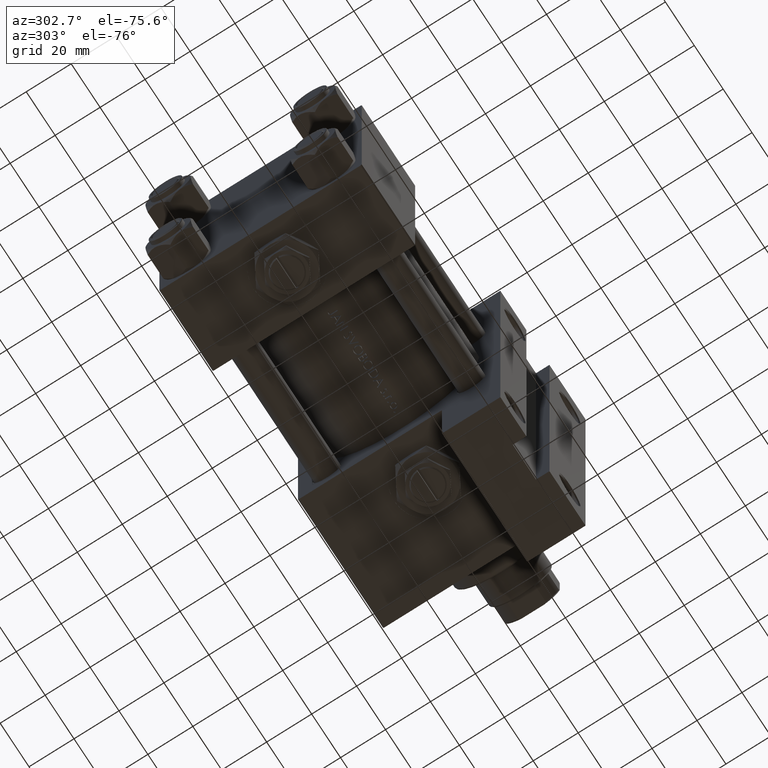
[diagram: clean part render]
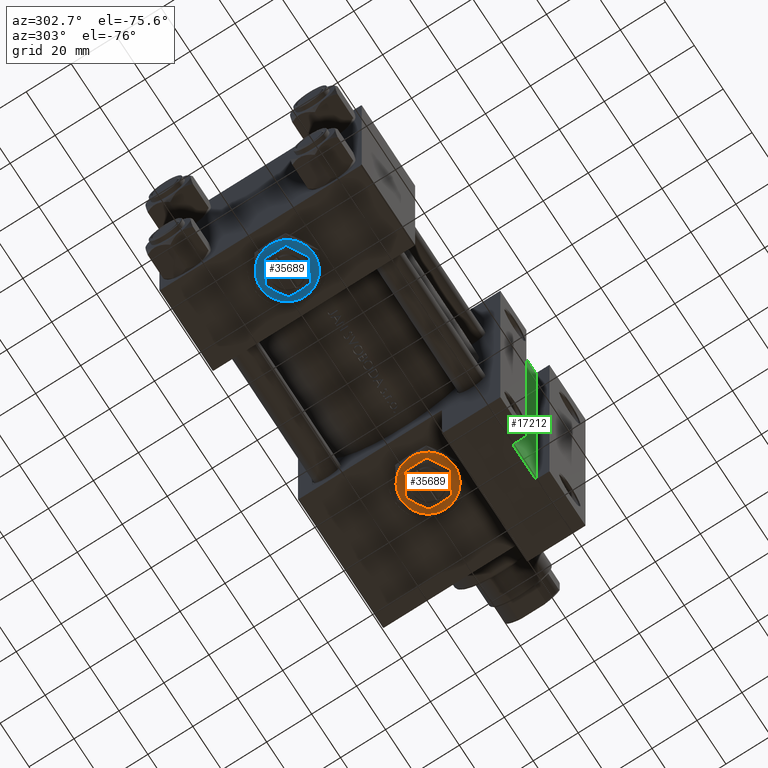
[diagram: same view with three faces highlighted in distinct colors, each labeled with its STEP entity id]
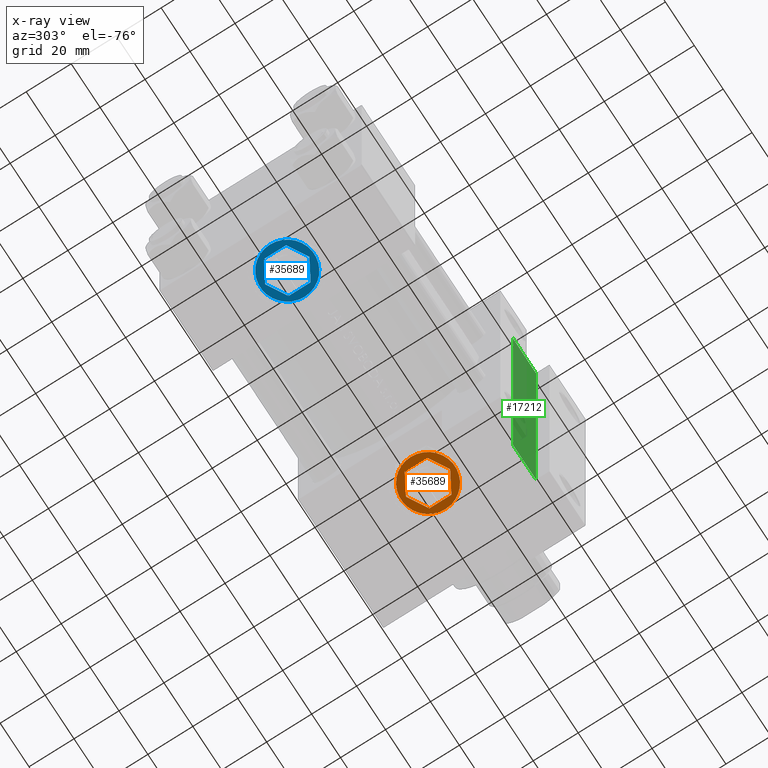
[diagram: x-ray of the same camera — body ghosted, the three highlighted faces saturated]
A machine part, auxiliary view with three faces highlighted in distinct colors.
The next image is the same camera in x-ray (body ghosted, the three faces saturated) — at least one of them is partly hidden behind the body in this view.
Their STEP definitions:

[orange] entity #35689 — the highlighted planar face has unit normal (0, 0, -1).
#386 = AXIS2_PLACEMENT_3D ( 'NONE', #17984, #6428, #19156 ) ;
#557 = VERTEX_POINT ( 'NONE', #48236 ) ;
#794 = AXIS2_PLACEMENT_3D ( 'NONE', #31246, #46593, #24429 ) ;
#1342 = DIRECTION ( 'NONE',  ( 1.000000000000000000, 0.000000000000000000, 0.000000000000000000 ) ) ;
#1390 = DIRECTION ( 'NONE',  ( 0.000000000000000000, -1.000000000000000000, 0.000000000000000000 ) ) ;
#2011 = ORIENTED_EDGE ( 'NONE', *, *, #36742, .F. ) ;
#2595 = CARTESIAN_POINT ( 'NONE',  ( 6.000000000000000888, 10.39230484541326582, 4.299999999999999822 ) ) ;
#2626 = CIRCLE ( 'NONE', #33955, 12.00000000000000178 ) ;
#2661 = VERTEX_POINT ( 'NONE', #38215 ) ;
#2811 = CIRCLE ( 'NONE', #386, 12.00000000000000178 ) ;
#3235 = EDGE_CURVE ( 'NONE', #35848, #27114, #23175, .T. ) ;
#3412 = VECTOR ( 'NONE', #36596, 1000.000000000000227 ) ;
#3415 = ORIENTED_EDGE ( 'NONE', *, *, #42263, .T. ) ;
#3680 = VECTOR ( 'NONE', #38524, 1000.000000000000114 ) ;
#4024 = CIRCLE ( 'NONE', #16835, 12.00000000000000178 ) ;
#4152 = EDGE_CURVE ( 'NONE', #557, #48402, #25081, .T. ) ;
#4809 = CARTESIAN_POINT ( 'NONE',  ( 8.499999999999996447, 4.907477288111821601, 4.299999999999999822 ) ) ;
#5008 = CARTESIAN_POINT ( 'NONE',  ( 8.500000000000000000, -4.907477288111819824, 4.299999999999999822 ) ) ;
#5399 = LINE ( 'NONE', #35841, #26519 ) ;
#5908 = CIRCLE ( 'NONE', #13945, 12.00000000000000178 ) ;
#6428 = DIRECTION ( 'NONE',  ( 0.000000000000000000, 0.000000000000000000, 1.000000000000000000 ) ) ;
#6717 = DIRECTION ( 'NONE',  ( 1.000000000000000000, 0.000000000000000000, 0.000000000000000000 ) ) ;
#7130 = EDGE_CURVE ( 'NONE', #48402, #2661, #5908, .T. ) ;
#8242 = VERTEX_POINT ( 'NONE', #44599 ) ;
#8527 = VERTEX_POINT ( 'NONE', #4809 ) ;
#8639 = CARTESIAN_POINT ( 'NONE',  ( 0.000000000000000000, 0.000000000000000000, 4.299999999999999822 ) ) ;
#9301 = EDGE_CURVE ( 'NONE', #24192, #557, #2811, .T. ) ;
#9357 = PLANE ( 'NONE',  #794 ) ;
#10319 = VERTEX_POINT ( 'NONE', #5008 ) ;
#11084 = LINE ( 'NONE', #15091, #44974 ) ;
#13051 = ORIENTED_EDGE ( 'NONE', *, *, #38361, .F. ) ;
#13120 = ORIENTED_EDGE ( 'NONE', *, *, #4152, .T. ) ;
#13139 = CARTESIAN_POINT ( 'NONE',  ( 0.000000000000000000, 0.000000000000000000, 4.299999999999999822 ) ) ;
#13382 = EDGE_LOOP ( 'NONE', ( #14989, #49125, #41225, #3415, #21770, #13120 ) ) ;
#13945 = AXIS2_PLACEMENT_3D ( 'NONE', #8639, #27988, #19941 ) ;
#14594 = CARTESIAN_POINT ( 'NONE',  ( -8.500000000000000000, -4.907477288111819824, 4.299999999999999822 ) ) ;
#14989 = ORIENTED_EDGE ( 'NONE', *, *, #7130, .T. ) ;
#15091 = CARTESIAN_POINT ( 'NONE',  ( -2.644623992720612091E-15, -9.814954576223637872, 4.299999999999999822 ) ) ;
#16310 = VERTEX_POINT ( 'NONE', #34478 ) ;
#16546 = CARTESIAN_POINT ( 'NONE',  ( -2.644623992720612091E-15, -9.814954576223637872, 4.299999999999999822 ) ) ;
#16835 = AXIS2_PLACEMENT_3D ( 'NONE', #28060, #43413, #47429 ) ;
#17403 = DIRECTION ( 'NONE',  ( -0.8660254037844387076, 0.4999999999999998890, 0.000000000000000000 ) ) ;
#17964 = LINE ( 'NONE', #40352, #3412 ) ;
#17984 = CARTESIAN_POINT ( 'NONE',  ( 0.000000000000000000, 0.000000000000000000, 4.299999999999999822 ) ) ;
#18228 = EDGE_CURVE ( 'NONE', #21411, #8242, #17964, .T. ) ;
#19156 = DIRECTION ( 'NONE',  ( 1.000000000000000000, 0.000000000000000000, 0.000000000000000000 ) ) ;
#19941 = DIRECTION ( 'NONE',  ( 1.000000000000000000, 0.000000000000000000, 0.000000000000000000 ) ) ;
#20151 = FACE_BOUND ( 'NONE', #32594, .T. ) ;
#21411 = VERTEX_POINT ( 'NONE', #47285 ) ;
#21725 = VECTOR ( 'NONE', #17403, 1000.000000000000114 ) ;
#21770 = ORIENTED_EDGE ( 'NONE', *, *, #9301, .T. ) ;
#22047 = EDGE_CURVE ( 'NONE', #2661, #38489, #2626, .T. ) ;
#23175 = LINE ( 'NONE', #23912, #3680 ) ;
#23912 = CARTESIAN_POINT ( 'NONE',  ( -8.500000000000000000, -4.907477288111819824, 4.299999999999999822 ) ) ;
#24192 = VERTEX_POINT ( 'NONE', #41586 ) ;
#24429 = DIRECTION ( 'NONE',  ( 1.000000000000000000, 0.000000000000000000, -0.000000000000000000 ) ) ;
#24656 = CARTESIAN_POINT ( 'NONE',  ( 8.500000000000000000, -4.907477288111819824, 4.299999999999999822 ) ) ;
#24713 = CARTESIAN_POINT ( 'NONE',  ( 8.499999999999996447, 4.907477288111821601, 4.299999999999999822 ) ) ;
#25081 = CIRCLE ( 'NONE', #40335, 12.00000000000000178 ) ;
#25825 = CARTESIAN_POINT ( 'NONE',  ( 0.000000000000000000, 0.000000000000000000, 4.299999999999999822 ) ) ;
#25911 = AXIS2_PLACEMENT_3D ( 'NONE', #13139, #28484, #1342 ) ;
#26519 = VECTOR ( 'NONE', #1390, 1000.000000000000000 ) ;
#27114 = VERTEX_POINT ( 'NONE', #16546 ) ;
#27988 = DIRECTION ( 'NONE',  ( 0.000000000000000000, 0.000000000000000000, 1.000000000000000000 ) ) ;
#28060 = CARTESIAN_POINT ( 'NONE',  ( 0.000000000000000000, 0.000000000000000000, 4.299999999999999822 ) ) ;
#28437 = LINE ( 'NONE', #24656, #43360 ) ;
#28484 = DIRECTION ( 'NONE',  ( 0.000000000000000000, 0.000000000000000000, 1.000000000000000000 ) ) ;
#31246 = CARTESIAN_POINT ( 'NONE',  ( 0.000000000000000000, 0.000000000000000000, 4.299999999999999822 ) ) ;
#31634 = CARTESIAN_POINT ( 'NONE',  ( 0.000000000000000000, 0.000000000000000000, 4.299999999999999822 ) ) ;
#31994 = CARTESIAN_POINT ( 'NONE',  ( 5.999999999999998224, -10.39230484541326760, 4.299999999999999822 ) ) ;
#32594 = EDGE_LOOP ( 'NONE', ( #46430, #13051, #42019, #33686, #33874, #2011 ) ) ;
#32657 = EDGE_CURVE ( 'NONE', #10319, #8527, #28437, .T. ) ;
#33159 = EDGE_CURVE ( 'NONE', #38489, #16310, #4024, .T. ) ;
#33686 = ORIENTED_EDGE ( 'NONE', *, *, #35939, .F. ) ;
#33874 = ORIENTED_EDGE ( 'NONE', *, *, #3235, .F. ) ;
#33955 = AXIS2_PLACEMENT_3D ( 'NONE', #25825, #41174, #6717 ) ;
#34228 = DIRECTION ( 'NONE',  ( 0.8660254037844388186, 0.4999999999999997224, 0.000000000000000000 ) ) ;
#34478 = CARTESIAN_POINT ( 'NONE',  ( -6.000000000000001776, 10.39230484541326405, 4.299999999999999822 ) ) ;
#35689 = ADVANCED_FACE ( 'NONE', ( #43813, #20151 ), #9357, .T. ) ;
#35841 = CARTESIAN_POINT ( 'NONE',  ( -8.500000000000000000, 4.907477288111818048, 4.299999999999999822 ) ) ;
#35848 = VERTEX_POINT ( 'NONE', #14594 ) ;
#35939 = EDGE_CURVE ( 'NONE', #27114, #10319, #11084, .T. ) ;
#36147 = DIRECTION ( 'NONE',  ( 0.000000000000000000, 0.000000000000000000, 1.000000000000000000 ) ) ;
#36596 = DIRECTION ( 'NONE',  ( -0.8660254037844385966, -0.5000000000000000000, 0.000000000000000000 ) ) ;
#36742 = EDGE_CURVE ( 'NONE', #8242, #35848, #5399, .T. ) ;
#38215 = CARTESIAN_POINT ( 'NONE',  ( 11.99999999999999645, 3.004629197474318063E-15, 4.299999999999999822 ) ) ;
#38361 = EDGE_CURVE ( 'NONE', #8527, #21411, #43347, .T. ) ;
#38489 = VERTEX_POINT ( 'NONE', #2595 ) ;
#38524 = DIRECTION ( 'NONE',  ( 0.8660254037844385966, -0.5000000000000001110, 0.000000000000000000 ) ) ;
#39537 = CIRCLE ( 'NONE', #25911, 12.00000000000000178 ) ;
#40000 = DIRECTION ( 'NONE',  ( -3.534857879381550604E-16, 1.000000000000000000, 0.000000000000000000 ) ) ;
#40335 = AXIS2_PLACEMENT_3D ( 'NONE', #31634, #36147, #43713 ) ;
#40352 = CARTESIAN_POINT ( 'NONE',  ( 0.000000000000000000, 9.814954576223637872, 4.299999999999999822 ) ) ;
#41174 = DIRECTION ( 'NONE',  ( 0.000000000000000000, 0.000000000000000000, 1.000000000000000000 ) ) ;
#41225 = ORIENTED_EDGE ( 'NONE', *, *, #33159, .T. ) ;
#41586 = CARTESIAN_POINT ( 'NONE',  ( -12.00000000000000178, 0.000000000000000000, 4.299999999999999822 ) ) ;
#42019 = ORIENTED_EDGE ( 'NONE', *, *, #32657, .F. ) ;
#42263 = EDGE_CURVE ( 'NONE', #16310, #24192, #39537, .T. ) ;
#43347 = LINE ( 'NONE', #24713, #21725 ) ;
#43360 = VECTOR ( 'NONE', #40000, 1000.000000000000000 ) ;
#43413 = DIRECTION ( 'NONE',  ( 0.000000000000000000, 0.000000000000000000, 1.000000000000000000 ) ) ;
#43713 = DIRECTION ( 'NONE',  ( 1.000000000000000000, 0.000000000000000000, 0.000000000000000000 ) ) ;
#43813 = FACE_OUTER_BOUND ( 'NONE', #13382, .T. ) ;
#44599 = CARTESIAN_POINT ( 'NONE',  ( -8.500000000000000000, 4.907477288111818048, 4.299999999999999822 ) ) ;
#44974 = VECTOR ( 'NONE', #34228, 1000.000000000000114 ) ;
#46430 = ORIENTED_EDGE ( 'NONE', *, *, #18228, .F. ) ;
#46593 = DIRECTION ( 'NONE',  ( 0.000000000000000000, 0.000000000000000000, 1.000000000000000000 ) ) ;
#47285 = CARTESIAN_POINT ( 'NONE',  ( 0.000000000000000000, 9.814954576223637872, 4.299999999999999822 ) ) ;
#47429 = DIRECTION ( 'NONE',  ( 1.000000000000000000, 0.000000000000000000, 0.000000000000000000 ) ) ;
#48236 = CARTESIAN_POINT ( 'NONE',  ( -6.000000000000000000, -10.39230484541326582, 4.299999999999999822 ) ) ;
#48402 = VERTEX_POINT ( 'NONE', #31994 ) ;
#49125 = ORIENTED_EDGE ( 'NONE', *, *, #22047, .T. ) ;

[blue] entity #35689 — the highlighted planar face has unit normal (0, 0, -1).
#386 = AXIS2_PLACEMENT_3D ( 'NONE', #17984, #6428, #19156 ) ;
#557 = VERTEX_POINT ( 'NONE', #48236 ) ;
#794 = AXIS2_PLACEMENT_3D ( 'NONE', #31246, #46593, #24429 ) ;
#1342 = DIRECTION ( 'NONE',  ( 1.000000000000000000, 0.000000000000000000, 0.000000000000000000 ) ) ;
#1390 = DIRECTION ( 'NONE',  ( 0.000000000000000000, -1.000000000000000000, 0.000000000000000000 ) ) ;
#2011 = ORIENTED_EDGE ( 'NONE', *, *, #36742, .F. ) ;
#2595 = CARTESIAN_POINT ( 'NONE',  ( 6.000000000000000888, 10.39230484541326582, 4.299999999999999822 ) ) ;
#2626 = CIRCLE ( 'NONE', #33955, 12.00000000000000178 ) ;
#2661 = VERTEX_POINT ( 'NONE', #38215 ) ;
#2811 = CIRCLE ( 'NONE', #386, 12.00000000000000178 ) ;
#3235 = EDGE_CURVE ( 'NONE', #35848, #27114, #23175, .T. ) ;
#3412 = VECTOR ( 'NONE', #36596, 1000.000000000000227 ) ;
#3415 = ORIENTED_EDGE ( 'NONE', *, *, #42263, .T. ) ;
#3680 = VECTOR ( 'NONE', #38524, 1000.000000000000114 ) ;
#4024 = CIRCLE ( 'NONE', #16835, 12.00000000000000178 ) ;
#4152 = EDGE_CURVE ( 'NONE', #557, #48402, #25081, .T. ) ;
#4809 = CARTESIAN_POINT ( 'NONE',  ( 8.499999999999996447, 4.907477288111821601, 4.299999999999999822 ) ) ;
#5008 = CARTESIAN_POINT ( 'NONE',  ( 8.500000000000000000, -4.907477288111819824, 4.299999999999999822 ) ) ;
#5399 = LINE ( 'NONE', #35841, #26519 ) ;
#5908 = CIRCLE ( 'NONE', #13945, 12.00000000000000178 ) ;
#6428 = DIRECTION ( 'NONE',  ( 0.000000000000000000, 0.000000000000000000, 1.000000000000000000 ) ) ;
#6717 = DIRECTION ( 'NONE',  ( 1.000000000000000000, 0.000000000000000000, 0.000000000000000000 ) ) ;
#7130 = EDGE_CURVE ( 'NONE', #48402, #2661, #5908, .T. ) ;
#8242 = VERTEX_POINT ( 'NONE', #44599 ) ;
#8527 = VERTEX_POINT ( 'NONE', #4809 ) ;
#8639 = CARTESIAN_POINT ( 'NONE',  ( 0.000000000000000000, 0.000000000000000000, 4.299999999999999822 ) ) ;
#9301 = EDGE_CURVE ( 'NONE', #24192, #557, #2811, .T. ) ;
#9357 = PLANE ( 'NONE',  #794 ) ;
#10319 = VERTEX_POINT ( 'NONE', #5008 ) ;
#11084 = LINE ( 'NONE', #15091, #44974 ) ;
#13051 = ORIENTED_EDGE ( 'NONE', *, *, #38361, .F. ) ;
#13120 = ORIENTED_EDGE ( 'NONE', *, *, #4152, .T. ) ;
#13139 = CARTESIAN_POINT ( 'NONE',  ( 0.000000000000000000, 0.000000000000000000, 4.299999999999999822 ) ) ;
#13382 = EDGE_LOOP ( 'NONE', ( #14989, #49125, #41225, #3415, #21770, #13120 ) ) ;
#13945 = AXIS2_PLACEMENT_3D ( 'NONE', #8639, #27988, #19941 ) ;
#14594 = CARTESIAN_POINT ( 'NONE',  ( -8.500000000000000000, -4.907477288111819824, 4.299999999999999822 ) ) ;
#14989 = ORIENTED_EDGE ( 'NONE', *, *, #7130, .T. ) ;
#15091 = CARTESIAN_POINT ( 'NONE',  ( -2.644623992720612091E-15, -9.814954576223637872, 4.299999999999999822 ) ) ;
#16310 = VERTEX_POINT ( 'NONE', #34478 ) ;
#16546 = CARTESIAN_POINT ( 'NONE',  ( -2.644623992720612091E-15, -9.814954576223637872, 4.299999999999999822 ) ) ;
#16835 = AXIS2_PLACEMENT_3D ( 'NONE', #28060, #43413, #47429 ) ;
#17403 = DIRECTION ( 'NONE',  ( -0.8660254037844387076, 0.4999999999999998890, 0.000000000000000000 ) ) ;
#17964 = LINE ( 'NONE', #40352, #3412 ) ;
#17984 = CARTESIAN_POINT ( 'NONE',  ( 0.000000000000000000, 0.000000000000000000, 4.299999999999999822 ) ) ;
#18228 = EDGE_CURVE ( 'NONE', #21411, #8242, #17964, .T. ) ;
#19156 = DIRECTION ( 'NONE',  ( 1.000000000000000000, 0.000000000000000000, 0.000000000000000000 ) ) ;
#19941 = DIRECTION ( 'NONE',  ( 1.000000000000000000, 0.000000000000000000, 0.000000000000000000 ) ) ;
#20151 = FACE_BOUND ( 'NONE', #32594, .T. ) ;
#21411 = VERTEX_POINT ( 'NONE', #47285 ) ;
#21725 = VECTOR ( 'NONE', #17403, 1000.000000000000114 ) ;
#21770 = ORIENTED_EDGE ( 'NONE', *, *, #9301, .T. ) ;
#22047 = EDGE_CURVE ( 'NONE', #2661, #38489, #2626, .T. ) ;
#23175 = LINE ( 'NONE', #23912, #3680 ) ;
#23912 = CARTESIAN_POINT ( 'NONE',  ( -8.500000000000000000, -4.907477288111819824, 4.299999999999999822 ) ) ;
#24192 = VERTEX_POINT ( 'NONE', #41586 ) ;
#24429 = DIRECTION ( 'NONE',  ( 1.000000000000000000, 0.000000000000000000, -0.000000000000000000 ) ) ;
#24656 = CARTESIAN_POINT ( 'NONE',  ( 8.500000000000000000, -4.907477288111819824, 4.299999999999999822 ) ) ;
#24713 = CARTESIAN_POINT ( 'NONE',  ( 8.499999999999996447, 4.907477288111821601, 4.299999999999999822 ) ) ;
#25081 = CIRCLE ( 'NONE', #40335, 12.00000000000000178 ) ;
#25825 = CARTESIAN_POINT ( 'NONE',  ( 0.000000000000000000, 0.000000000000000000, 4.299999999999999822 ) ) ;
#25911 = AXIS2_PLACEMENT_3D ( 'NONE', #13139, #28484, #1342 ) ;
#26519 = VECTOR ( 'NONE', #1390, 1000.000000000000000 ) ;
#27114 = VERTEX_POINT ( 'NONE', #16546 ) ;
#27988 = DIRECTION ( 'NONE',  ( 0.000000000000000000, 0.000000000000000000, 1.000000000000000000 ) ) ;
#28060 = CARTESIAN_POINT ( 'NONE',  ( 0.000000000000000000, 0.000000000000000000, 4.299999999999999822 ) ) ;
#28437 = LINE ( 'NONE', #24656, #43360 ) ;
#28484 = DIRECTION ( 'NONE',  ( 0.000000000000000000, 0.000000000000000000, 1.000000000000000000 ) ) ;
#31246 = CARTESIAN_POINT ( 'NONE',  ( 0.000000000000000000, 0.000000000000000000, 4.299999999999999822 ) ) ;
#31634 = CARTESIAN_POINT ( 'NONE',  ( 0.000000000000000000, 0.000000000000000000, 4.299999999999999822 ) ) ;
#31994 = CARTESIAN_POINT ( 'NONE',  ( 5.999999999999998224, -10.39230484541326760, 4.299999999999999822 ) ) ;
#32594 = EDGE_LOOP ( 'NONE', ( #46430, #13051, #42019, #33686, #33874, #2011 ) ) ;
#32657 = EDGE_CURVE ( 'NONE', #10319, #8527, #28437, .T. ) ;
#33159 = EDGE_CURVE ( 'NONE', #38489, #16310, #4024, .T. ) ;
#33686 = ORIENTED_EDGE ( 'NONE', *, *, #35939, .F. ) ;
#33874 = ORIENTED_EDGE ( 'NONE', *, *, #3235, .F. ) ;
#33955 = AXIS2_PLACEMENT_3D ( 'NONE', #25825, #41174, #6717 ) ;
#34228 = DIRECTION ( 'NONE',  ( 0.8660254037844388186, 0.4999999999999997224, 0.000000000000000000 ) ) ;
#34478 = CARTESIAN_POINT ( 'NONE',  ( -6.000000000000001776, 10.39230484541326405, 4.299999999999999822 ) ) ;
#35689 = ADVANCED_FACE ( 'NONE', ( #43813, #20151 ), #9357, .T. ) ;
#35841 = CARTESIAN_POINT ( 'NONE',  ( -8.500000000000000000, 4.907477288111818048, 4.299999999999999822 ) ) ;
#35848 = VERTEX_POINT ( 'NONE', #14594 ) ;
#35939 = EDGE_CURVE ( 'NONE', #27114, #10319, #11084, .T. ) ;
#36147 = DIRECTION ( 'NONE',  ( 0.000000000000000000, 0.000000000000000000, 1.000000000000000000 ) ) ;
#36596 = DIRECTION ( 'NONE',  ( -0.8660254037844385966, -0.5000000000000000000, 0.000000000000000000 ) ) ;
#36742 = EDGE_CURVE ( 'NONE', #8242, #35848, #5399, .T. ) ;
#38215 = CARTESIAN_POINT ( 'NONE',  ( 11.99999999999999645, 3.004629197474318063E-15, 4.299999999999999822 ) ) ;
#38361 = EDGE_CURVE ( 'NONE', #8527, #21411, #43347, .T. ) ;
#38489 = VERTEX_POINT ( 'NONE', #2595 ) ;
#38524 = DIRECTION ( 'NONE',  ( 0.8660254037844385966, -0.5000000000000001110, 0.000000000000000000 ) ) ;
#39537 = CIRCLE ( 'NONE', #25911, 12.00000000000000178 ) ;
#40000 = DIRECTION ( 'NONE',  ( -3.534857879381550604E-16, 1.000000000000000000, 0.000000000000000000 ) ) ;
#40335 = AXIS2_PLACEMENT_3D ( 'NONE', #31634, #36147, #43713 ) ;
#40352 = CARTESIAN_POINT ( 'NONE',  ( 0.000000000000000000, 9.814954576223637872, 4.299999999999999822 ) ) ;
#41174 = DIRECTION ( 'NONE',  ( 0.000000000000000000, 0.000000000000000000, 1.000000000000000000 ) ) ;
#41225 = ORIENTED_EDGE ( 'NONE', *, *, #33159, .T. ) ;
#41586 = CARTESIAN_POINT ( 'NONE',  ( -12.00000000000000178, 0.000000000000000000, 4.299999999999999822 ) ) ;
#42019 = ORIENTED_EDGE ( 'NONE', *, *, #32657, .F. ) ;
#42263 = EDGE_CURVE ( 'NONE', #16310, #24192, #39537, .T. ) ;
#43347 = LINE ( 'NONE', #24713, #21725 ) ;
#43360 = VECTOR ( 'NONE', #40000, 1000.000000000000000 ) ;
#43413 = DIRECTION ( 'NONE',  ( 0.000000000000000000, 0.000000000000000000, 1.000000000000000000 ) ) ;
#43713 = DIRECTION ( 'NONE',  ( 1.000000000000000000, 0.000000000000000000, 0.000000000000000000 ) ) ;
#43813 = FACE_OUTER_BOUND ( 'NONE', #13382, .T. ) ;
#44599 = CARTESIAN_POINT ( 'NONE',  ( -8.500000000000000000, 4.907477288111818048, 4.299999999999999822 ) ) ;
#44974 = VECTOR ( 'NONE', #34228, 1000.000000000000114 ) ;
#46430 = ORIENTED_EDGE ( 'NONE', *, *, #18228, .F. ) ;
#46593 = DIRECTION ( 'NONE',  ( 0.000000000000000000, 0.000000000000000000, 1.000000000000000000 ) ) ;
#47285 = CARTESIAN_POINT ( 'NONE',  ( 0.000000000000000000, 9.814954576223637872, 4.299999999999999822 ) ) ;
#47429 = DIRECTION ( 'NONE',  ( 1.000000000000000000, 0.000000000000000000, 0.000000000000000000 ) ) ;
#48236 = CARTESIAN_POINT ( 'NONE',  ( -6.000000000000000000, -10.39230484541326582, 4.299999999999999822 ) ) ;
#48402 = VERTEX_POINT ( 'NONE', #31994 ) ;
#49125 = ORIENTED_EDGE ( 'NONE', *, *, #22047, .T. ) ;

[green] entity #17212 — the highlighted planar face has unit normal (0, -1, 0).
#1421 = CARTESIAN_POINT ( 'NONE',  ( 113.9999999999999858, 79.99999999999998579, -39.00000000000000000 ) ) ;
#1469 = CARTESIAN_POINT ( 'NONE',  ( 129.9999999999999716, -80.00000000000001421, -39.00000000000000000 ) ) ;
#3901 = ORIENTED_EDGE ( 'NONE', *, *, #39075, .T. ) ;
#4776 = VERTEX_POINT ( 'NONE', #32696 ) ;
#5293 = VERTEX_POINT ( 'NONE', #1469 ) ;
#6922 = CARTESIAN_POINT ( 'NONE',  ( 113.9999999999999858, -79.99999999999997158, -39.00000000000000000 ) ) ;
#10566 = LINE ( 'NONE', #22139, #40253 ) ;
#12623 = LINE ( 'NONE', #27966, #19404 ) ;
#14572 = DIRECTION ( 'NONE',  ( -0.000000000000000000, -1.000000000000000000, -0.000000000000000000 ) ) ;
#14618 = DIRECTION ( 'NONE',  ( 0.000000000000000000, 0.000000000000000000, -1.000000000000000000 ) ) ;
#17212 = ADVANCED_FACE ( 'NONE', ( #25706 ), #21921, .T. ) ;
#18548 = VERTEX_POINT ( 'NONE', #42736 ) ;
#19209 = EDGE_CURVE ( 'NONE', #5293, #4776, #49659, .T. ) ;
#19346 = VECTOR ( 'NONE', #36611, 1000.000000000000000 ) ;
#19404 = VECTOR ( 'NONE', #27478, 1000.000000000000000 ) ;
#21247 = LINE ( 'NONE', #1421, #19346 ) ;
#21921 = PLANE ( 'NONE',  #36288 ) ;
#22139 = CARTESIAN_POINT ( 'NONE',  ( 129.9999999999999716, -79.99999999999997158, -39.00000000000000000 ) ) ;
#25191 = EDGE_LOOP ( 'NONE', ( #45229, #41473, #39743, #3901 ) ) ;
#25706 = FACE_OUTER_BOUND ( 'NONE', #25191, .T. ) ;
#27478 = DIRECTION ( 'NONE',  ( 0.000000000000000000, 1.000000000000000000, 0.000000000000000000 ) ) ;
#27966 = CARTESIAN_POINT ( 'NONE',  ( 113.9999999999999858, -79.99999999999997158, -39.00000000000000000 ) ) ;
#30097 = EDGE_CURVE ( 'NONE', #4776, #30476, #12623, .T. ) ;
#30224 = DIRECTION ( 'NONE',  ( -1.000000000000000000, 0.000000000000000000, -0.000000000000000000 ) ) ;
#30476 = VERTEX_POINT ( 'NONE', #36942 ) ;
#32696 = CARTESIAN_POINT ( 'NONE',  ( 113.9999999999999858, -79.99999999999997158, -39.00000000000000000 ) ) ;
#34325 = DIRECTION ( 'NONE',  ( -1.000000000000000000, -0.000000000000000000, -0.000000000000000000 ) ) ;
#36288 = AXIS2_PLACEMENT_3D ( 'NONE', #41052, #14618, #30224 ) ;
#36611 = DIRECTION ( 'NONE',  ( 1.000000000000000000, 0.000000000000000000, 0.000000000000000000 ) ) ;
#36942 = CARTESIAN_POINT ( 'NONE',  ( 113.9999999999999858, 79.99999999999998579, -39.00000000000000000 ) ) ;
#38875 = EDGE_CURVE ( 'NONE', #18548, #5293, #10566, .T. ) ;
#39075 = EDGE_CURVE ( 'NONE', #30476, #18548, #21247, .T. ) ;
#39743 = ORIENTED_EDGE ( 'NONE', *, *, #30097, .T. ) ;
#40253 = VECTOR ( 'NONE', #14572, 1000.000000000000000 ) ;
#41052 = CARTESIAN_POINT ( 'NONE',  ( 0.000000000000000000, 0.000000000000000000, -39.00000000000000000 ) ) ;
#41473 = ORIENTED_EDGE ( 'NONE', *, *, #19209, .T. ) ;
#42736 = CARTESIAN_POINT ( 'NONE',  ( 129.9999999999999716, 79.99999999999998579, -39.00000000000000000 ) ) ;
#45229 = ORIENTED_EDGE ( 'NONE', *, *, #38875, .T. ) ;
#46708 = VECTOR ( 'NONE', #34325, 1000.000000000000000 ) ;
#49659 = LINE ( 'NONE', #6922, #46708 ) ;